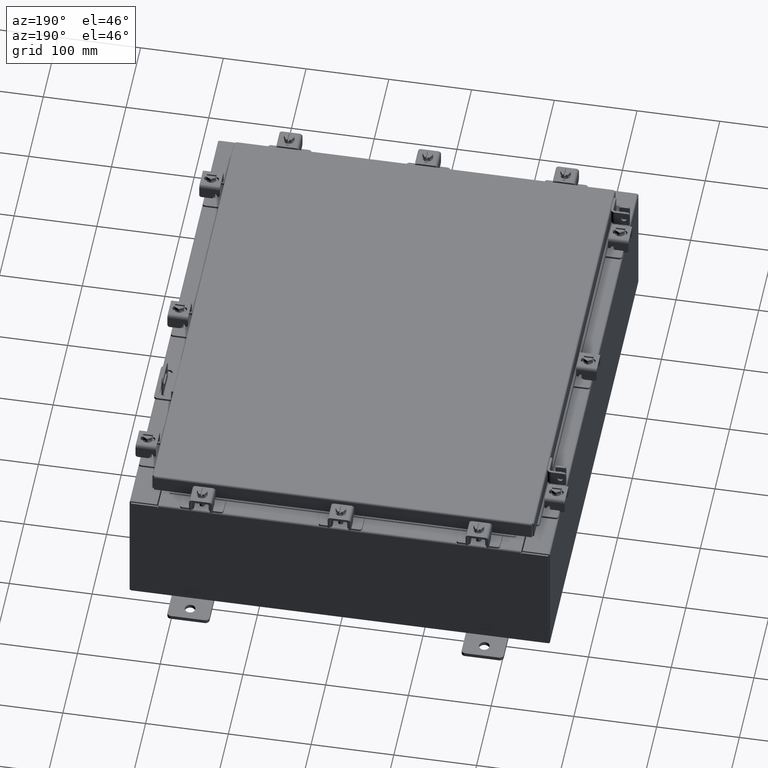
[diagram: clean part render]
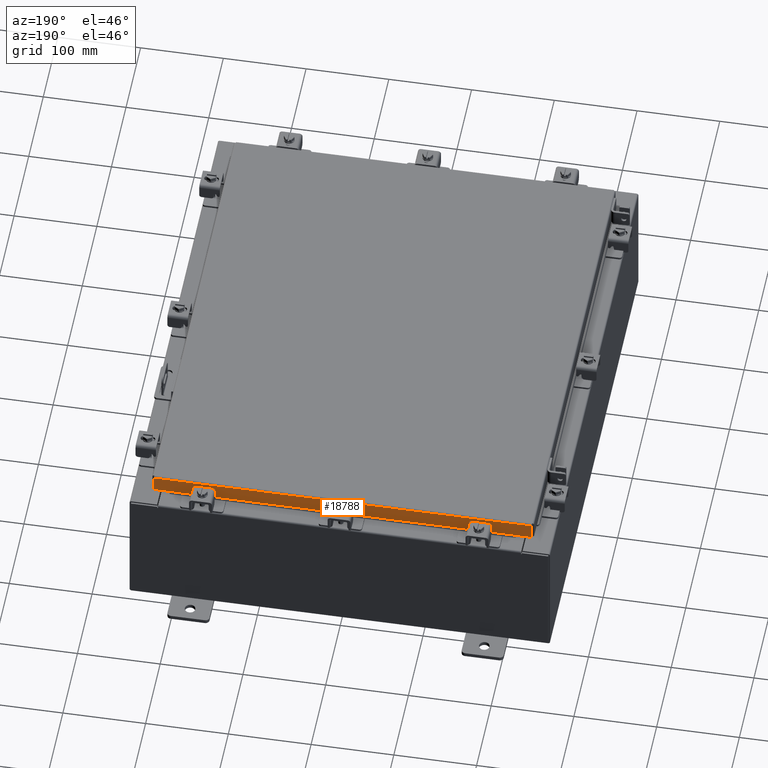
[diagram: same view with one face highlighted and labeled with its STEP entity id]
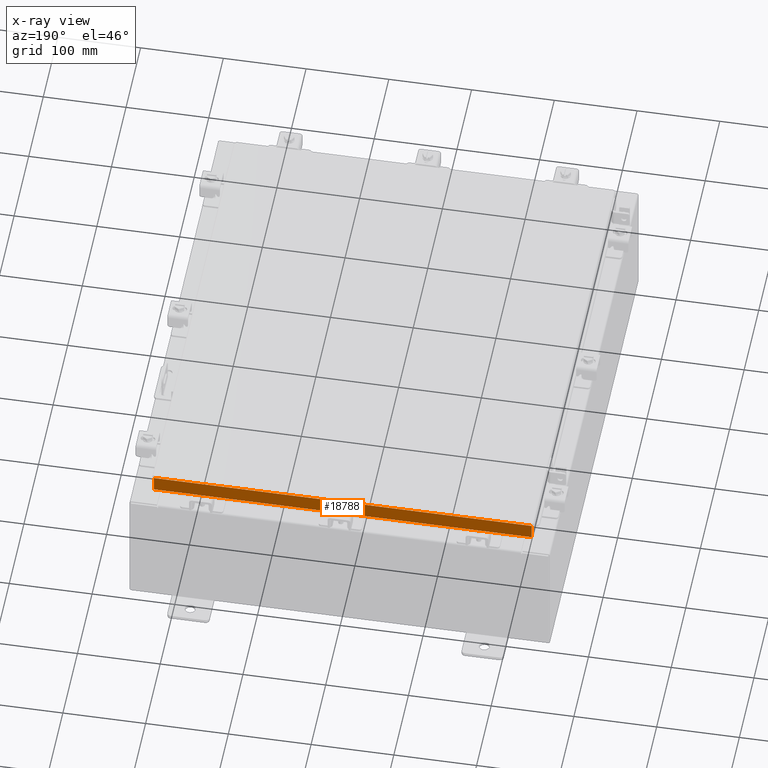
[diagram: x-ray of the same camera — body ghosted, the highlighted face saturated]
A machine part, auxiliary view. The second image highlights one B-rep face of the part: STEP entity #18788.
The next image is the same camera in x-ray: the body ghosted, the highlighted face saturated — about 0% of this face is hidden behind the body in this view.
In plain terms, the highlighted planar face has unit normal (0, -1, -0).
Its self-contained STEP definition (entity closure, byte-faithful):
#875 = EDGE_CURVE ( 'NONE', #17885, #8298, #13391, .T. ) ;
#1508 = CARTESIAN_POINT ( 'NONE',  ( -3.999633315828819900E-030, 11.09399999999999900, 3.153347883512804900E-014 ) ) ;
#1682 = LINE ( 'NONE', #6374, #19738 ) ;
#2386 = CARTESIAN_POINT ( 'NONE',  ( -8.989157864376267100, 11.09400000000000100, -0.8500000000000019800 ) ) ;
#3239 = DIRECTION ( 'NONE',  ( 0.0000000000000000000, 2.818880942772351900E-015, -1.000000000000000000 ) ) ;
#3287 = EDGE_CURVE ( 'NONE', #7576, #10440, #16333, .T. ) ;
#3521 = DIRECTION ( 'NONE',  ( 0.0000000000000000000, 2.818880942772351900E-015, -1.000000000000000000 ) ) ;
#4321 = LINE ( 'NONE', #14001, #17742 ) ;
#5459 = EDGE_CURVE ( 'NONE', #6614, #10732, #1682, .T. ) ;
#6172 = ORIENTED_EDGE ( 'NONE', *, *, #875, .F. ) ;
#6374 = CARTESIAN_POINT ( 'NONE',  ( -9.077999999999999400, 11.09400000000000100, -0.8500000000000019800 ) ) ;
#6614 = VERTEX_POINT ( 'NONE', #2386 ) ;
#7576 = VERTEX_POINT ( 'NONE', #11962 ) ;
#7613 = CARTESIAN_POINT ( 'NONE',  ( -8.989157864376267100, 11.09399999999999900, -0.07469999999999978000 ) ) ;
#8298 = VERTEX_POINT ( 'NONE', #13621 ) ;
#10082 = ORIENTED_EDGE ( 'NONE', *, *, #14422, .F. ) ;
#10192 = PLANE ( 'NONE',  #15103 ) ;
#10440 = VERTEX_POINT ( 'NONE', #19084 ) ;
#10732 = VERTEX_POINT ( 'NONE', #17343 ) ;
#11641 = VECTOR ( 'NONE', #17826, 39.37007874015748100 ) ;
#11924 = CARTESIAN_POINT ( 'NONE',  ( -9.077999999999999400, 11.09400000000000100, -0.8500000000000019800 ) ) ;
#11962 = CARTESIAN_POINT ( 'NONE',  ( 8.239157864376267100, 11.09399999999999900, -0.8500000000000046400 ) ) ;
#13339 = LINE ( 'NONE', #22020, #17458 ) ;
#13391 = LINE ( 'NONE', #22575, #22125 ) ;
#13408 = DIRECTION ( 'NONE',  ( 1.000000000000000000, -0.0000000000000000000, -0.0000000000000000000 ) ) ;
#13621 = CARTESIAN_POINT ( 'NONE',  ( -8.989157864376267100, 11.09399999999999900, -0.08770000000000007000 ) ) ;
#13733 = DIRECTION ( 'NONE',  ( 3.605222026166233900E-031, -1.000000000000000000, -2.818880942772351900E-015 ) ) ;
#14001 = CARTESIAN_POINT ( 'NONE',  ( 8.989157864376267100, 11.09399999999999900, 3.153347883512804900E-014 ) ) ;
#14154 = EDGE_CURVE ( 'NONE', #17885, #10440, #4321, .T. ) ;
#14422 = EDGE_CURVE ( 'NONE', #10732, #7576, #13339, .T. ) ;
#15103 = AXIS2_PLACEMENT_3D ( 'NONE', #1508, #13733, #3239 ) ;
#15112 = ORIENTED_EDGE ( 'NONE', *, *, #3287, .F. ) ;
#15812 = FACE_OUTER_BOUND ( 'NONE', #16850, .T. ) ;
#15951 = EDGE_CURVE ( 'NONE', #8298, #6614, #17555, .T. ) ;
#16173 = CARTESIAN_POINT ( 'NONE',  ( 8.989157864376267100, 11.09399999999999900, -0.08770000000000007000 ) ) ;
#16333 = LINE ( 'NONE', #11924, #11641 ) ;
#16850 = EDGE_LOOP ( 'NONE', ( #6172, #21985, #15112, #10082, #19315, #19620 ) ) ;
#17343 = CARTESIAN_POINT ( 'NONE',  ( -8.239157864376267100, 11.09399999999999900, -0.8500000000000046400 ) ) ;
#17458 = VECTOR ( 'NONE', #13408, 39.37007874015748100 ) ;
#17555 = LINE ( 'NONE', #7613, #22173 ) ;
#17742 = VECTOR ( 'NONE', #3521, 39.37007874015748100 ) ;
#17826 = DIRECTION ( 'NONE',  ( 1.000000000000000000, -4.379057701015054300E-047, 1.278955053213606700E-016 ) ) ;
#17885 = VERTEX_POINT ( 'NONE', #16173 ) ;
#18788 = ADVANCED_FACE ( 'NONE', ( #15812 ), #10192, .F. ) ;
#19084 = CARTESIAN_POINT ( 'NONE',  ( 8.989157864376267100, 11.09400000000000100, -0.8499999999999996400 ) ) ;
#19315 = ORIENTED_EDGE ( 'NONE', *, *, #5459, .F. ) ;
#19620 = ORIENTED_EDGE ( 'NONE', *, *, #15951, .F. ) ;
#19738 = VECTOR ( 'NONE', #22128, 39.37007874015748100 ) ;
#21581 = DIRECTION ( 'NONE',  ( -0.0000000000000000000, 2.818880942772351900E-015, -1.000000000000000000 ) ) ;
#21881 = DIRECTION ( 'NONE',  ( -1.000000000000000000, -3.605222026166234800E-031, -9.826997386333231700E-046 ) ) ;
#21985 = ORIENTED_EDGE ( 'NONE', *, *, #14154, .T. ) ;
#22020 = CARTESIAN_POINT ( 'NONE',  ( -8.239157864376267100, 11.09399999999999900, -0.8500000000000046400 ) ) ;
#22125 = VECTOR ( 'NONE', #21881, 39.37007874015748100 ) ;
#22128 = DIRECTION ( 'NONE',  ( 1.000000000000000000, -4.379057701015054300E-047, 1.278955053213606700E-016 ) ) ;
#22173 = VECTOR ( 'NONE', #21581, 39.37007874015748100 ) ;
#22575 = CARTESIAN_POINT ( 'NONE',  ( -9.077999999999999400, 11.09399999999999900, -0.08770000000000007000 ) ) ;